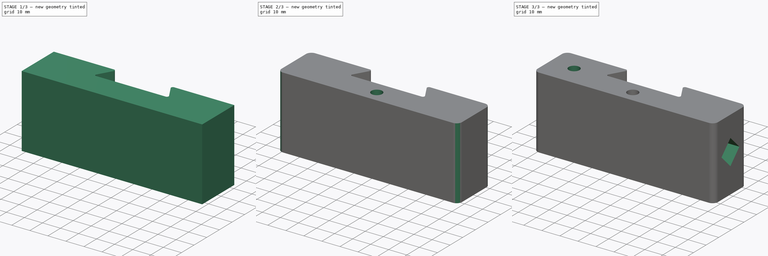
[diagram: build sequence overview — one tinted view per stage of 3, left to right]
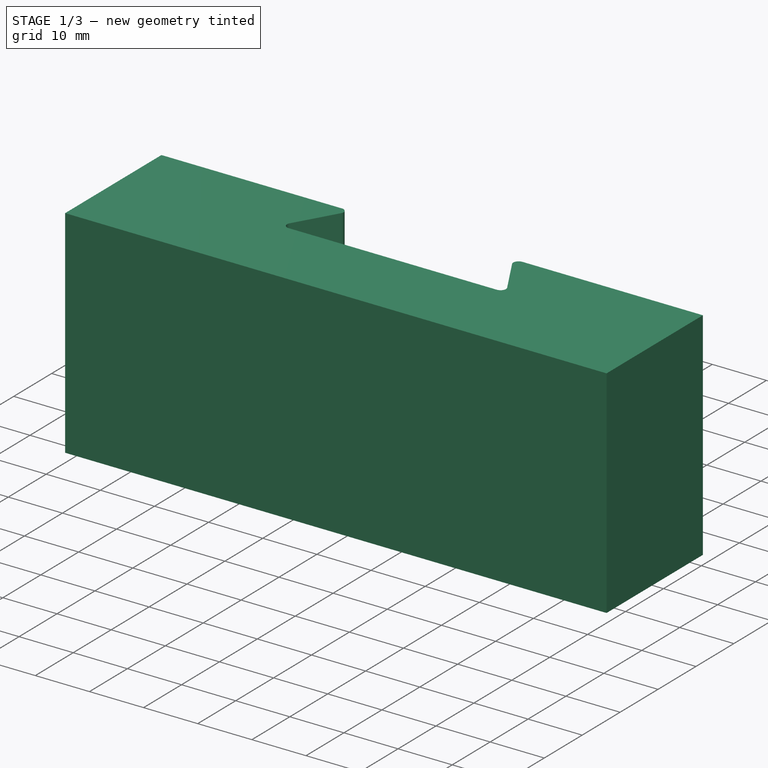
[diagram: stage 1 of 3 — iso view after this stage's code; geometry added in this stage tinted green]
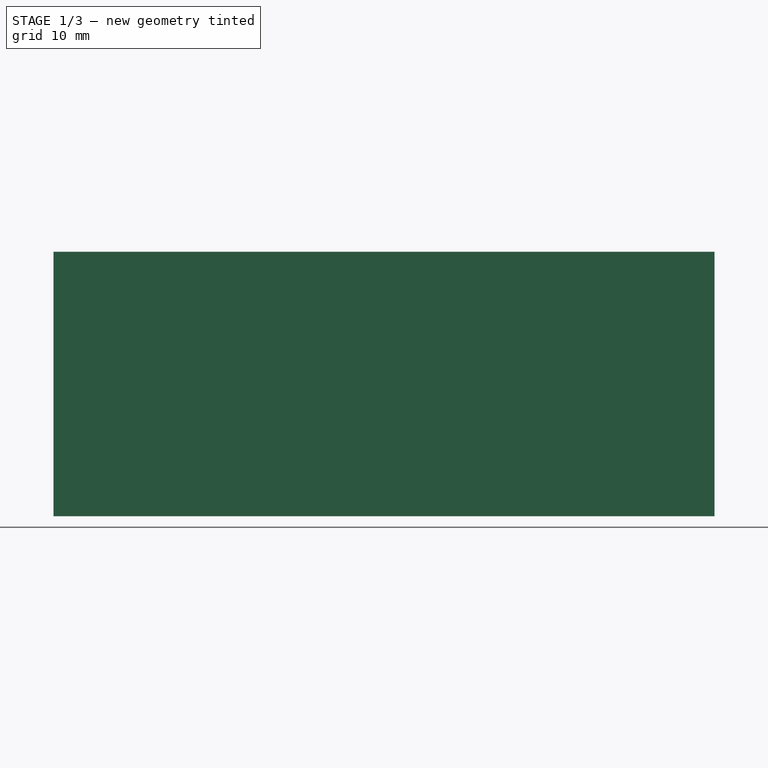
[diagram: stage 1 of 3 — front view after this stage's code; geometry added in this stage tinted green]
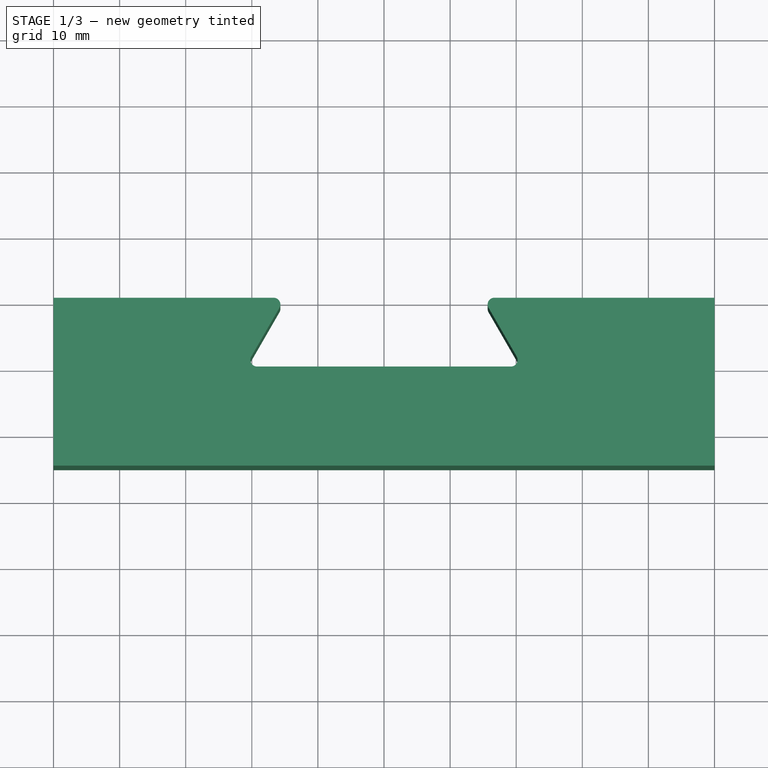
[diagram: stage 1 of 3 — top view after this stage's code; geometry added in this stage tinted green]
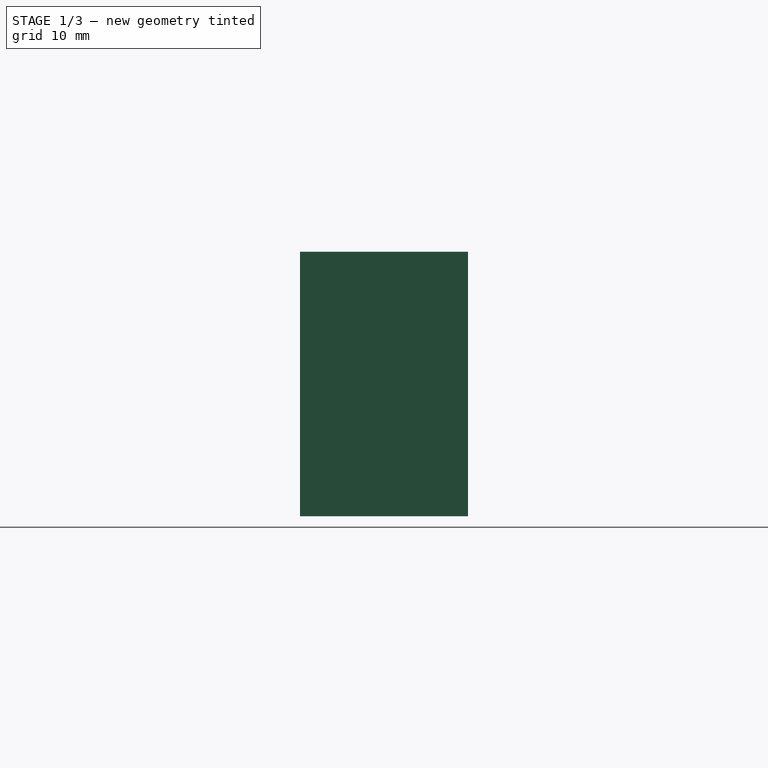
[diagram: stage 1 of 3 — right view after this stage's code; geometry added in this stage tinted green]
FCSTD DOCUMENT  (FreeCAD 0.16R)
Label: BXAholderBlank
License: All rights reserved
LicenseURL: http://en.wikipedia.org/wiki/All_rights_reserved
objects: Sketcher::SketchObject×4, PartDesign::Pocket×3, PartDesign::Fillet×2, PartDesign::Pad×1
note: 14 computed .brp shape members not serialized (recipe doc carries the construction recipe); baked Part::Feature solids carry a one-line shape summary decoded from their .brp

FEATURE [Sketcher::SketchObject] Sketch
  sketch-geometry (8):
    g0: LineSegment StartX=-14.9456 StartY=10.4 StartZ=0 EndX=-20.95 EndY=0 EndZ=0
    g1: LineSegment StartX=-20.95 StartY=0 StartZ=0 EndX=20.95 EndY=0 EndZ=0
    g2: LineSegment StartX=20.95 StartY=0 StartZ=0 EndX=14.9456 EndY=10.4 EndZ=0
    g3: LineSegment StartX=14.9456 StartY=10.4 StartZ=0 EndX=50 EndY=10.4 EndZ=0
    g4: LineSegment StartX=50 StartY=10.4 StartZ=0 EndX=50 EndY=-15 EndZ=0
    g5: LineSegment StartX=50 StartY=-15 StartZ=0 EndX=-50 EndY=-15 EndZ=0
    g6: LineSegment StartX=-50 StartY=-15 StartZ=0 EndX=-50 EndY=10.4 EndZ=0
    g7: LineSegment StartX=-50 StartY=10.4 StartZ=0 EndX=-14.9456 EndY=10.4 EndZ=0
  constraints (24):
    c: Coincident(g0,g1)
    c: Horizontal(g1)
    c: Coincident(g1,g2)
    c: Coincident(g2,g3)
    c: Horizontal(g3)
    c: Vertical(g4)
    c: Coincident(g4,g5)
    c: Horizontal(g5)
    c: Coincident(g5,g6)
    c: Coincident(g6,g7)
    c: Coincident(g7,g0)
    c: Horizontal(g7)
    c: Angle(g0) = -2.0944
    c: Angle(g2) = 2.0944
    c: PointOnObject(g-1,g1)
    c: Symmetric(g1,g0,g-1)
    c: Distance(g1,g0) = 41.9
    c: Distance(g0,g7) = 10.4
    c: Distance(g1,g3) = 10.4
    c: Vertical(g6)
    c: Coincident(g4,g3)
    c: DistanceY(g4) = -15
    c: Symmetric(g3,g6,g-2)
    c: Distance(g6,g3) = 100
FEATURE [PartDesign::Pad] Pad
  Length = 40
  Length2 = 100
  Sketch = -> Sketch
  Type = 0
FEATURE [PartDesign::Fillet] Fillet
  Base = -> Pad [Edge5,Edge2,Edge1,Edge8]
  Radius = 1
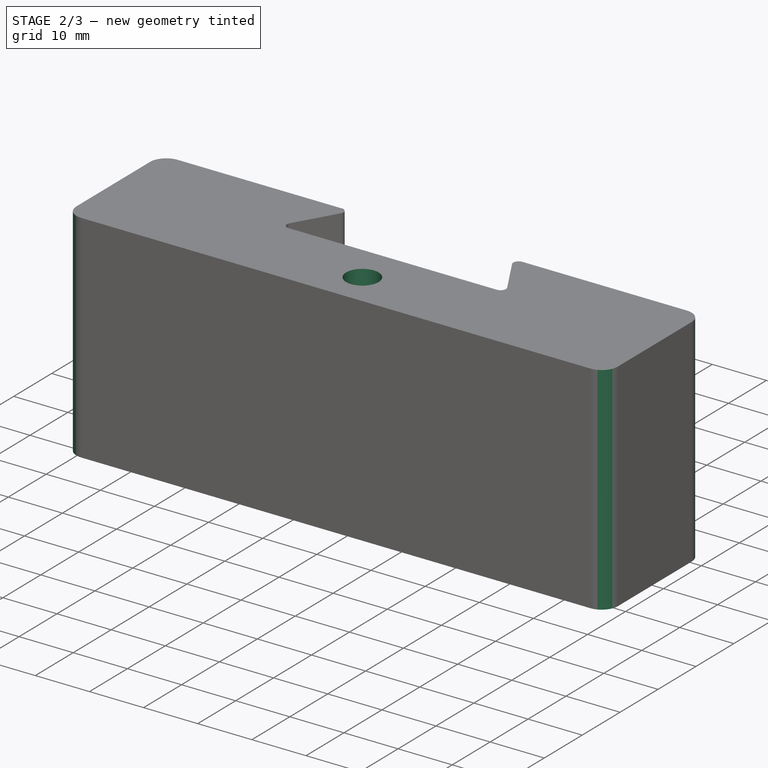
[diagram: stage 2 of 3 — iso view after this stage's code; geometry added in this stage tinted green]
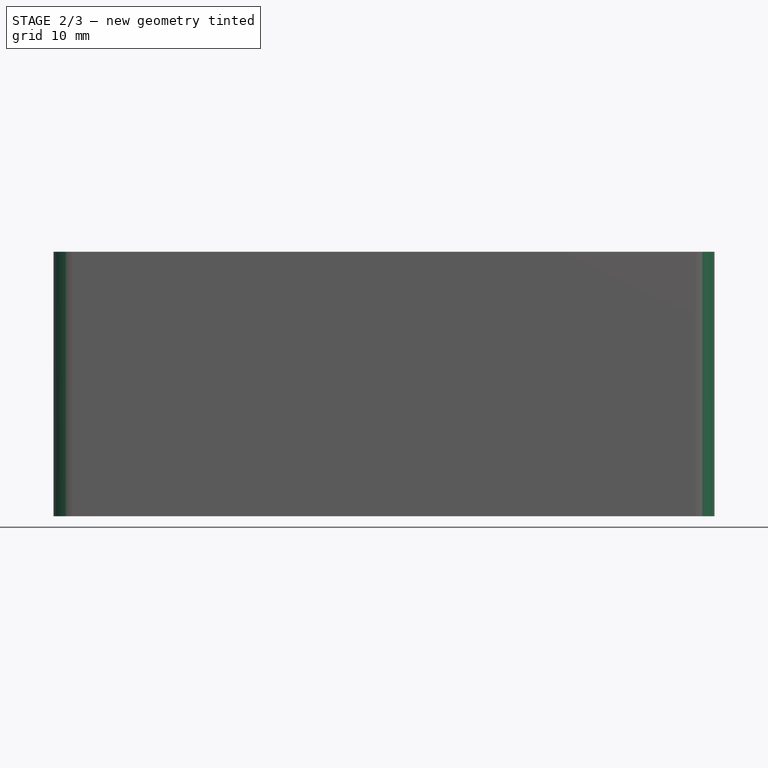
[diagram: stage 2 of 3 — front view after this stage's code; geometry added in this stage tinted green]
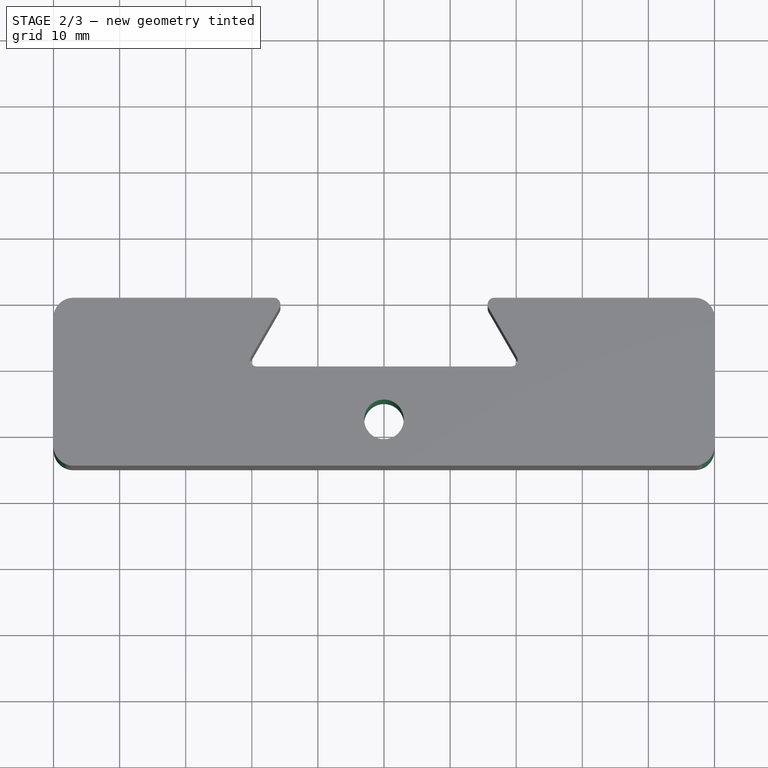
[diagram: stage 2 of 3 — top view after this stage's code; geometry added in this stage tinted green]
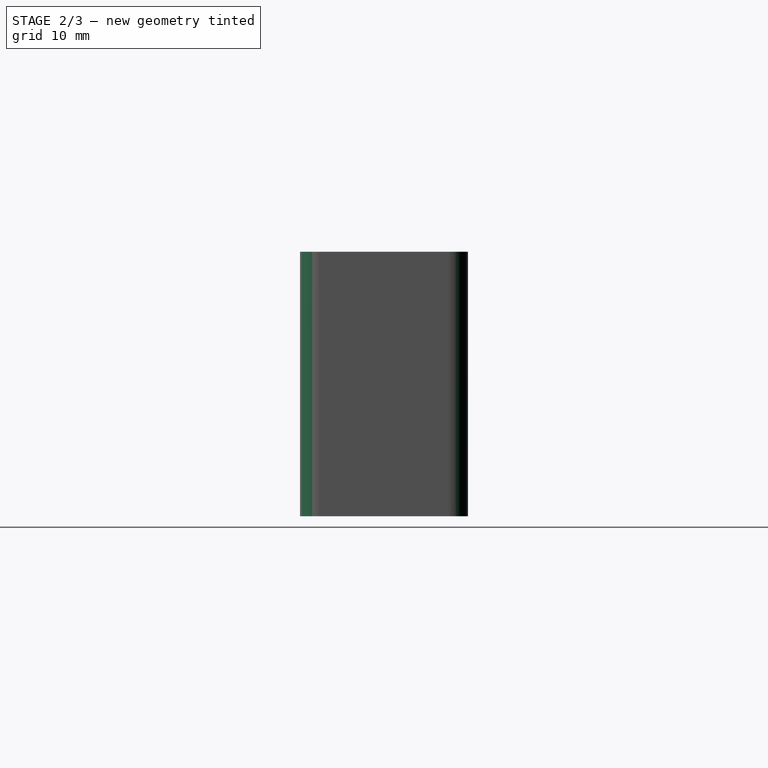
[diagram: stage 2 of 3 — right view after this stage's code; geometry added in this stage tinted green]
FEATURE [PartDesign::Fillet] Fillet001
  Base = -> Fillet [Edge29,Edge35,Edge33,Edge31]
  Radius = 3
FEATURE [Sketcher::SketchObject] Sketch001
  Placement = pos=(0,0,0) rot=(1,0,0;3.14159rad)
  Support = -> Fillet001 [Face1]
  sketch-geometry (1):
    g0: Circle CenterX=0 CenterY=8 CenterZ=0 NormalX=0 NormalY=0 NormalZ=1 Radius=3
  constraints (3):
    c: Radius(g0) = 3
    c: PointOnObject(g0,g-2)
    c: Distance(g-1,g0) = 8
FEATURE [PartDesign::Pocket] Pocket
  Length = 19
  Sketch = -> Sketch001
  Type = 1
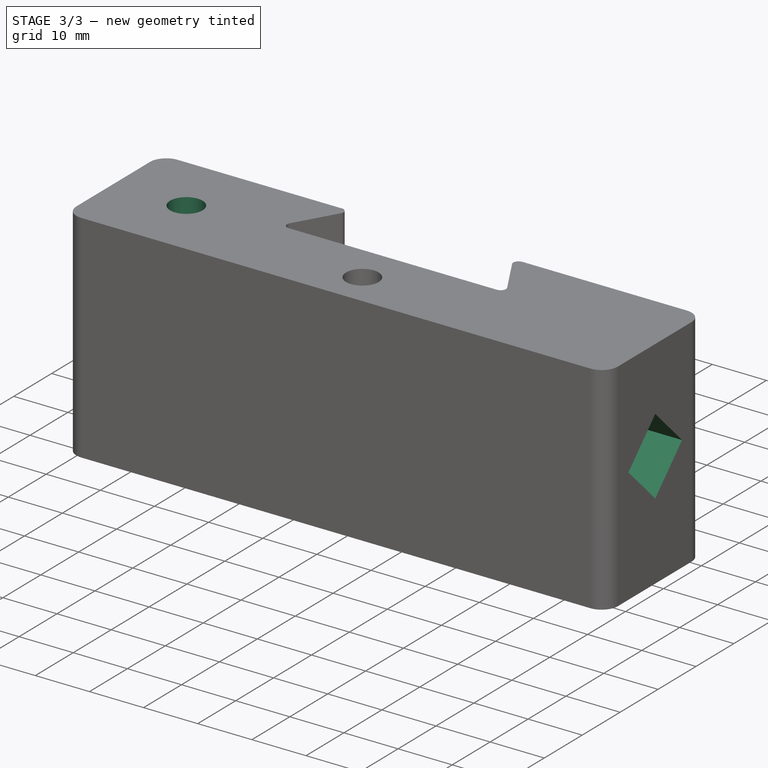
[diagram: stage 3 of 3 — iso view after this stage's code; geometry added in this stage tinted green]
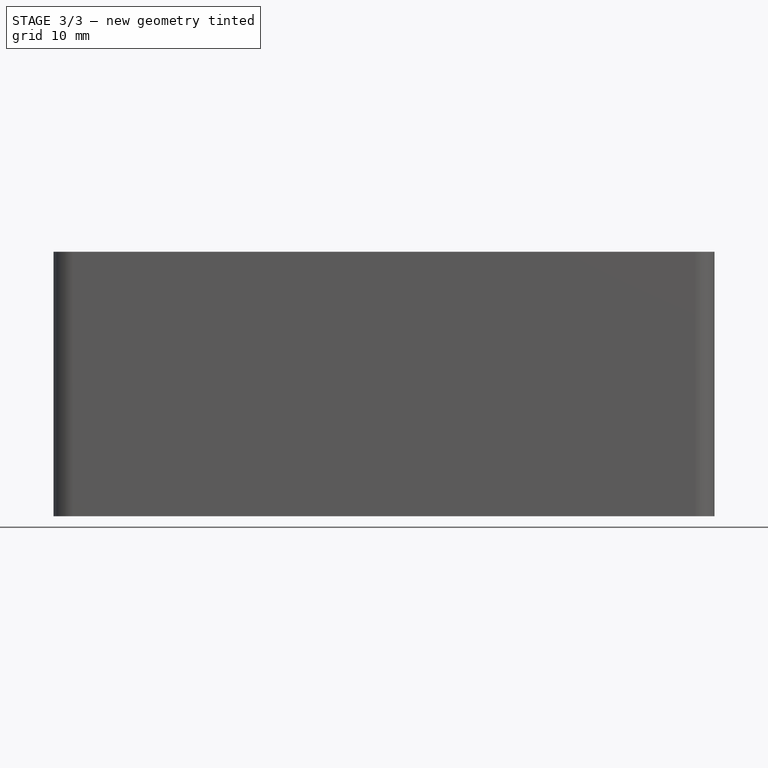
[diagram: stage 3 of 3 — front view after this stage's code; geometry added in this stage tinted green]
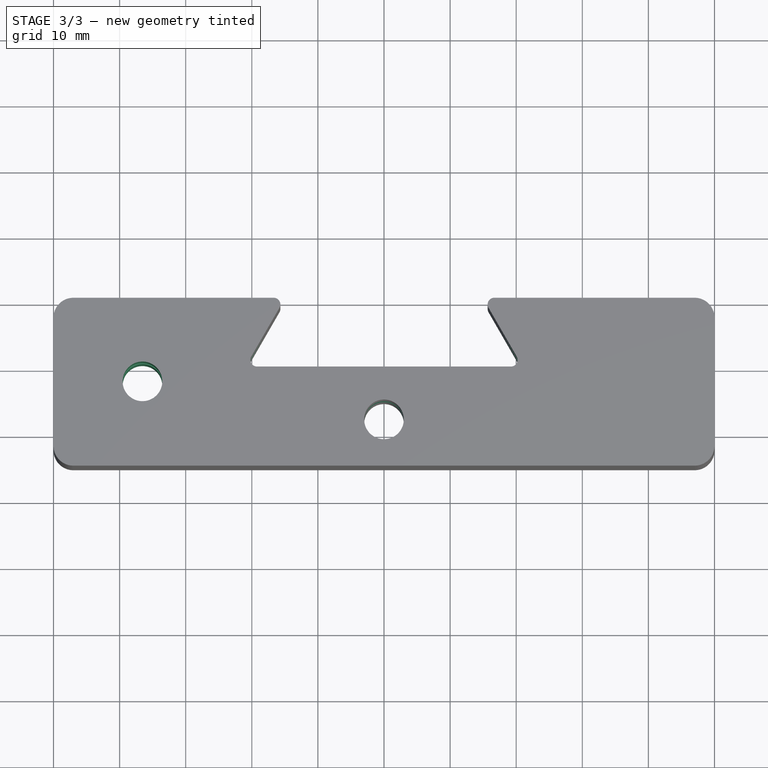
[diagram: stage 3 of 3 — top view after this stage's code; geometry added in this stage tinted green]
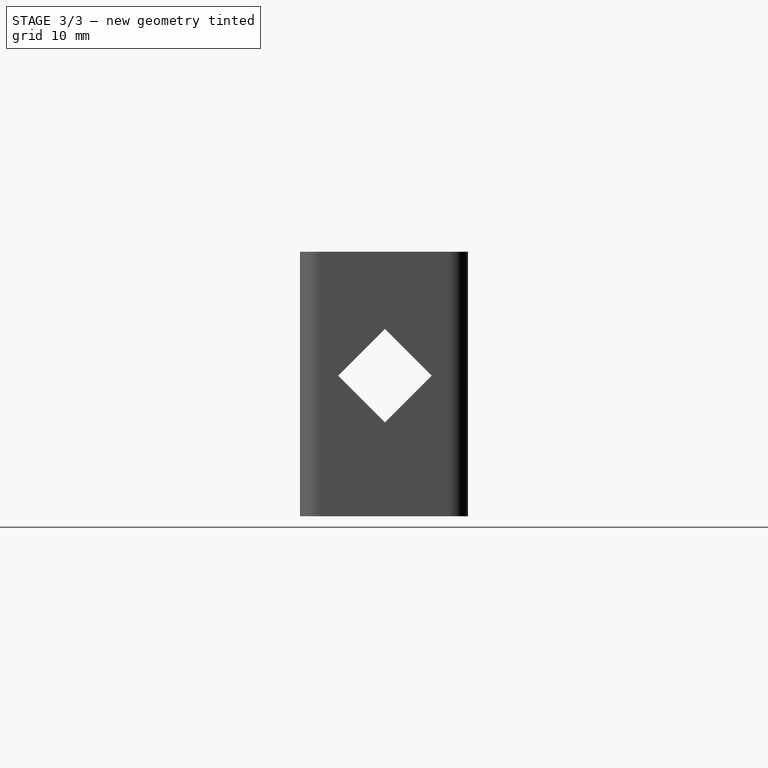
[diagram: stage 3 of 3 — right view after this stage's code; geometry added in this stage tinted green]
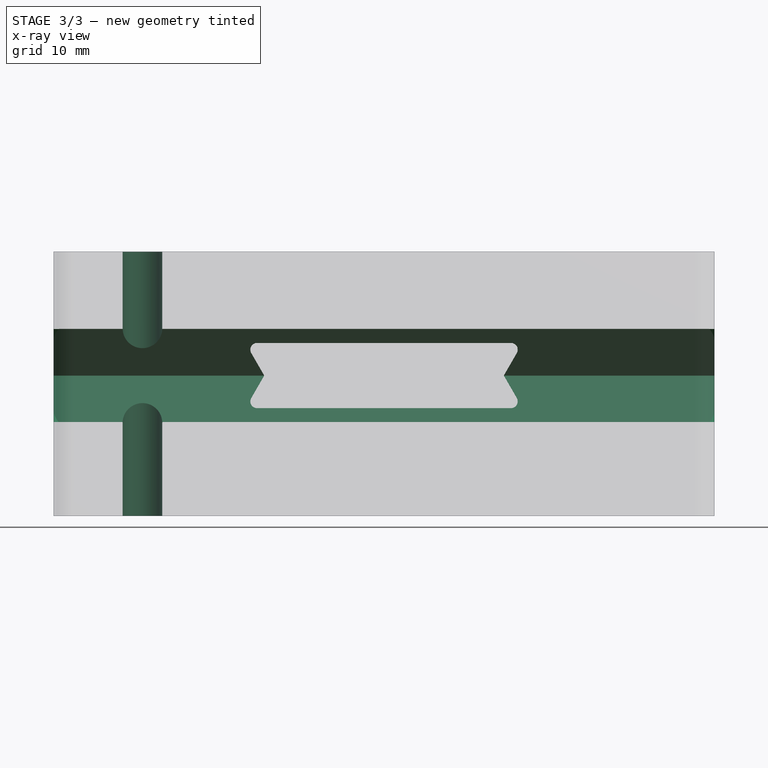
[diagram: stage 3 of 3 — x-ray composite at the front view; earlier geometry ghosted, this stage's added geometry solid]
FEATURE [Sketcher::SketchObject] Sketch002
  Placement = pos=(-50,0,0) rot=(0.57735,-0.57735,-0.57735;2.0944rad)
  Support = -> Pocket [Face5]
  sketch-geometry (4):
    g0: LineSegment StartX=2.15722 StartY=14.1938 StartZ=0 EndX=-4.91385 EndY=21.2649 EndZ=0
    g1: LineSegment StartX=-4.91385 StartY=21.2649 StartZ=0 EndX=2.15722 EndY=28.336 EndZ=0
    g2: LineSegment StartX=2.15722 StartY=28.336 StartZ=0 EndX=9.22829 EndY=21.2649 EndZ=0
    g3: LineSegment StartX=9.22829 StartY=21.2649 StartZ=0 EndX=2.15722 EndY=14.1938 EndZ=0
  constraints (10):
    c: Coincident(g0,g1)
    c: Coincident(g1,g2)
    c: Coincident(g2,g3)
    c: Coincident(g3,g0)
    c: Perpendicular(g0,g3)
    c: Equal(g0,g3)
    c: Perpendicular(g1,g2)
    c: Perpendicular(g0,g1)
    c: Angle(g1) = 0.785398
    c: Distance(g2) = 10
FEATURE [PartDesign::Pocket] Pocket001
  Length = 12
  Sketch = -> Sketch002
  Type = 1
FEATURE [Sketcher::SketchObject] Sketch004
  Placement = pos=(0,0,40) rot=(0,0,1;0rad)
  Support = -> Pocket001 [Face19]
  sketch-geometry (1):
    g0: Circle CenterX=-36.5444 CenterY=-2.24433 CenterZ=0 NormalX=0 NormalY=0 NormalZ=1 Radius=3
  constraints (1):
    c: Radius(g0) = 3
FEATURE [PartDesign::Pocket] Pocket002
  Length = 5
  Sketch = -> Sketch004
  Type = 1
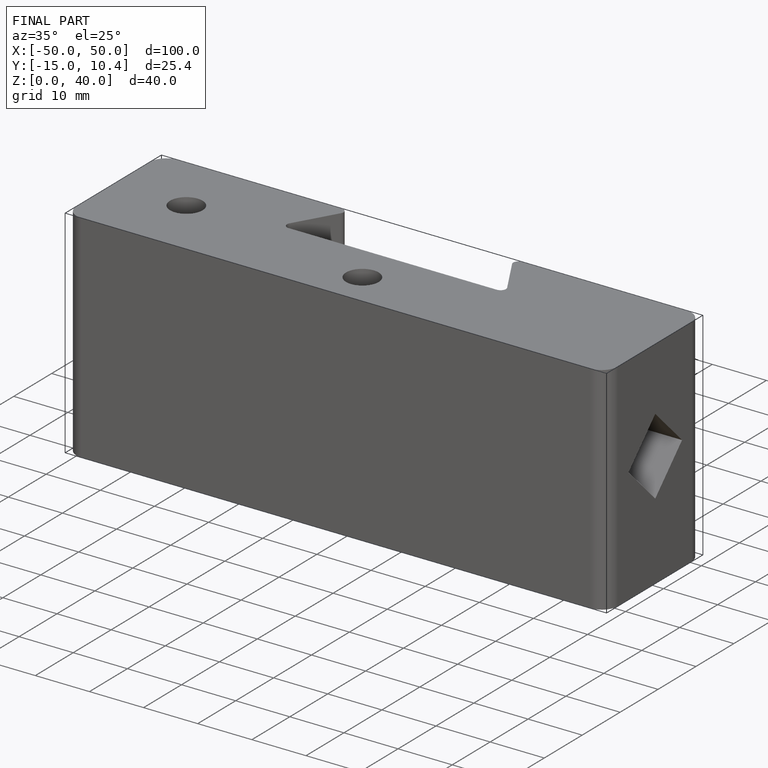
[diagram: finished part — iso view with bounding-box wireframe]
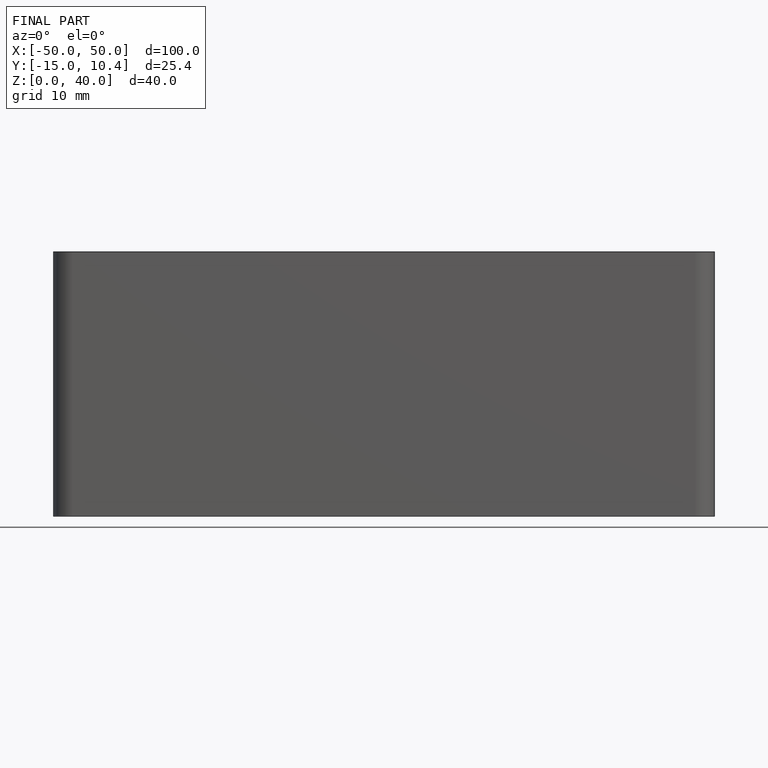
[diagram: finished part — front view with bounding-box wireframe]
